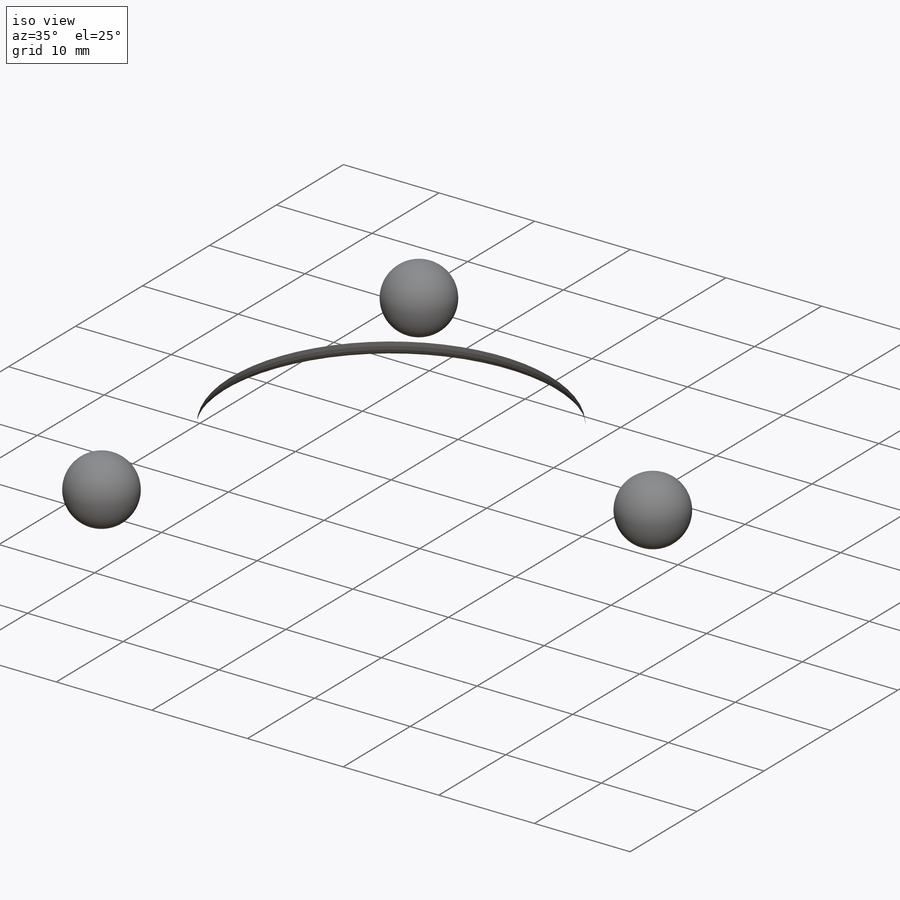
[diagram: iso view]
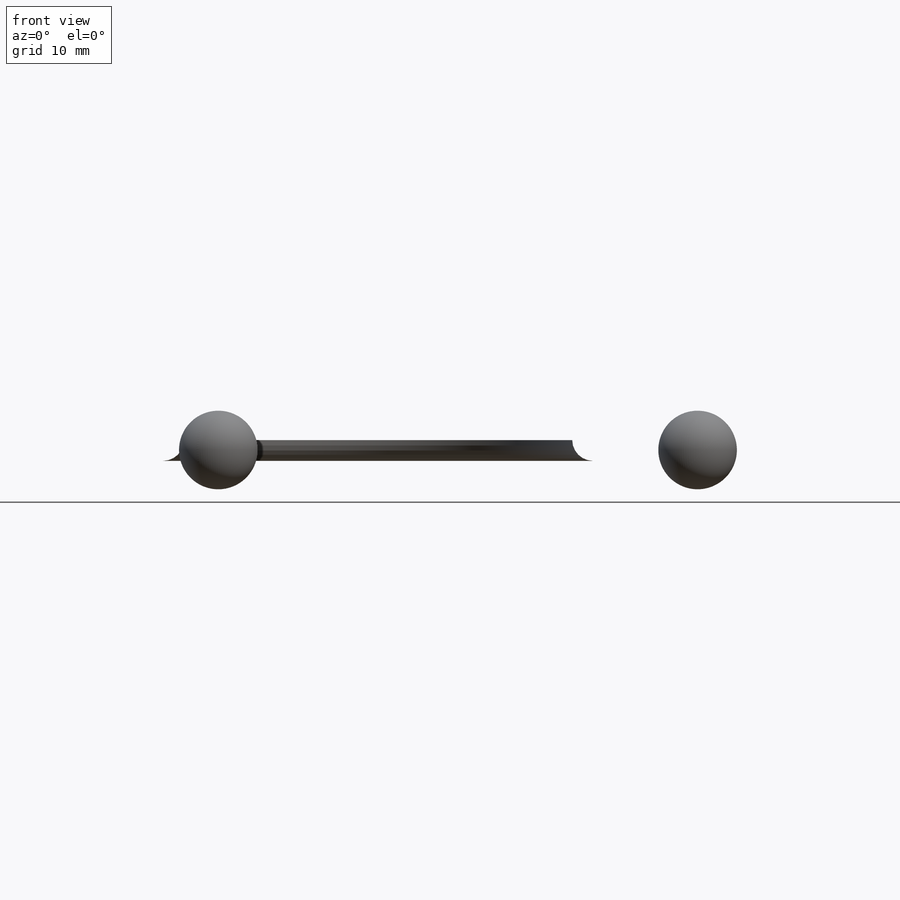
[diagram: front view]
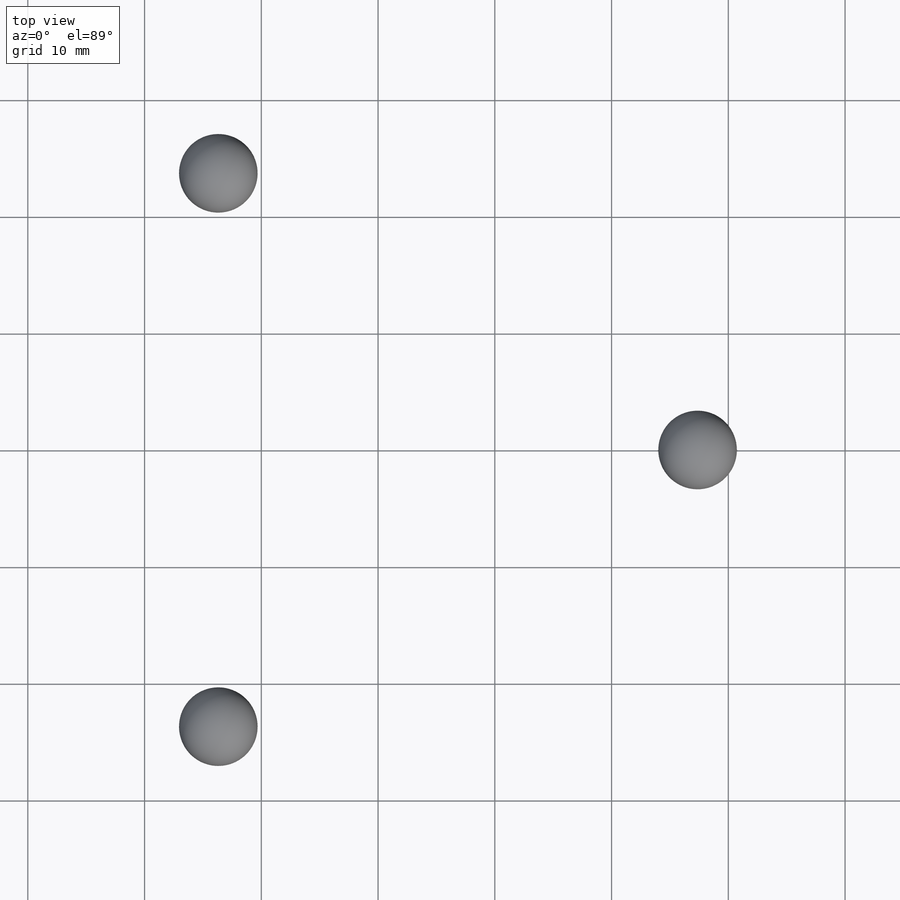
[diagram: top view]
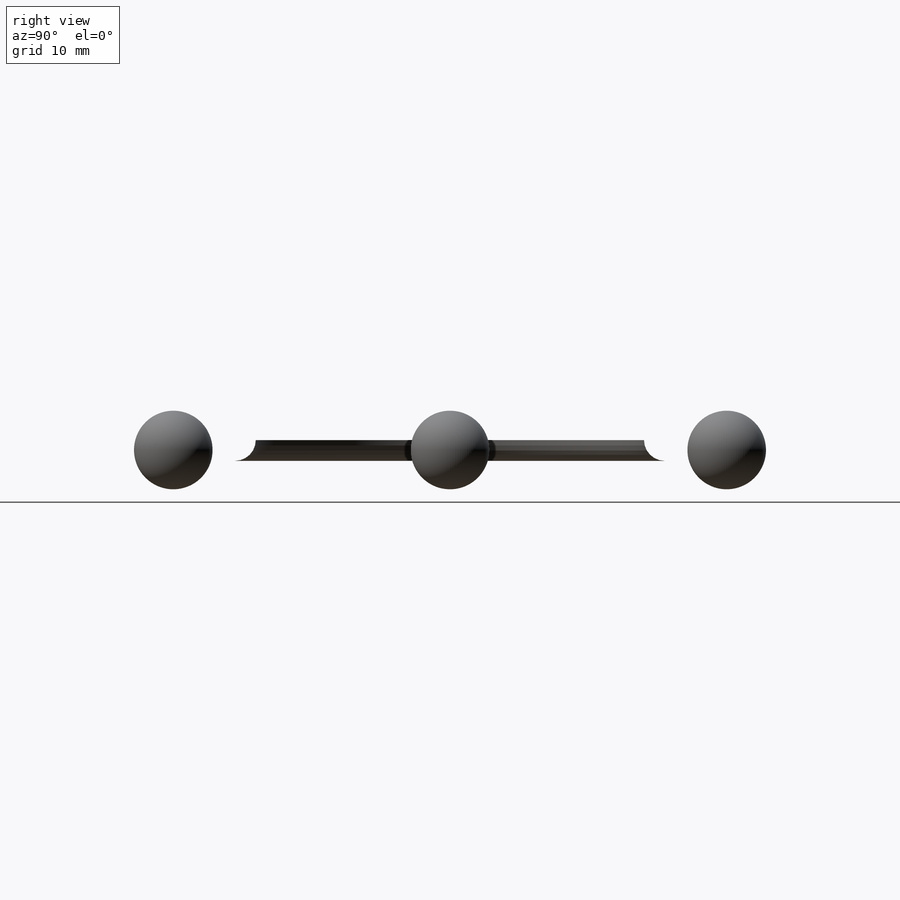
[diagram: right view]
SOLIDWORKS PART (.sldprt)
format: sldprt  version: not decoded by parser v0  size: 982,016 bytes
history: native  units: mm
features: sketch x11, hole x3, extrude x2, fillet x2, material x1, revolve x1, pattern_circular x1 (+12 scaffold rows collapsed)
feature tree (33):
  scaffold x12  (default folders/planes/origin — collapsed)
  material  "Material <not specified>"
  sketch  "Sketch1"  dims[c1.D1=~6.174642mm c1.D5=7.9502mm c1.D7=3.9751mm c1.D6=3.9751mm c2.D1=~53.784381mm c2.D2=~53.784381mm c3.D1=33.274mm c3.D2=3.556mm c3.D3=76.2mm c3.D4=6.604mm c3.D5=9.525mm c3.D6=9.525mm c3.D8=0.7366mm c3.D9=~2.829762mm c4.D9=45.0deg c4.D10=0.7366mm c5.D9=8.128mm c5.D10=~47.447248mm c5.D6=54.737mm c5.D1=360.0deg c5.D3=0.7366mm c5.D4=1.0mm c5.D7=0.0mm]
  sketch  "Sketch1<5>"  dims[D1=360.0deg D3=0.7366mm D4=1.0mm D7=0.0mm]
  sketch  "Sketch2"  dims[D1=76.2mm]
  extrude  "Extrude1"  [1 undecoded]
  sketch  "Sketch3"
  extrude  "Extrude2"  [1 undecoded]
  sketch  "Sketch4"  dims[D1=0.0508mm D2=~1.463381mm]
  revolve  "Revolve1"  Angle=360deg
  pattern_circular  "CirPattern1"  Count=3 Angle=360deg
  fillet  "Fillet1"  Radius=7.9502mm
  fillet  "Fillet2"  Radius=7.9502mm
  hole  "5/32 (0.156250) Diameter Hole1"  Diameter=3.96875mm Depth=0.7366mm
  sketch  "Sketch6"  dims[D1=65.1002mm D2=65.1002mm]
  sketch  "Sketch5"  dims[hole-wizard template sketch: 61 standard entries collapsed; hole parameters above]
  hole  "5/32 (0.156250) Diameter Hole2"  Diameter=3.96875mm Depth=8.128mm
  sketch  "Sketch8"  dims[D1=65.1002mm D2=65.1002mm]
  sketch  "Sketch7"  dims[hole-wizard template sketch: 60 standard entries collapsed; hole parameters kept: c18.Thru Hole Depth=8.128mm]
  hole  "3/32 (0.09375) Diameter Hole1"  Diameter=2.38252mm Depth=3.175mm
  sketch  "Sketch10"  dims[D1=53.975mm D2=53.975mm]
  sketch  "Sketch9"  dims[hole-wizard template sketch: 46 standard entries collapsed; hole parameters kept: c15.Hole Dia.=~2.38252mm c15.Hole Depth=3.175mm c15.D3=~14.816244mm c15.Drill Angle=118.0deg]
decode coverage: 17 of 20 modeling features carry decoded parameters
note: ~ marks probable driven/reference dimensions
note: 2 parameter values undecoded
note: suppression state not decoded; provenance and decode notes live in map.json
